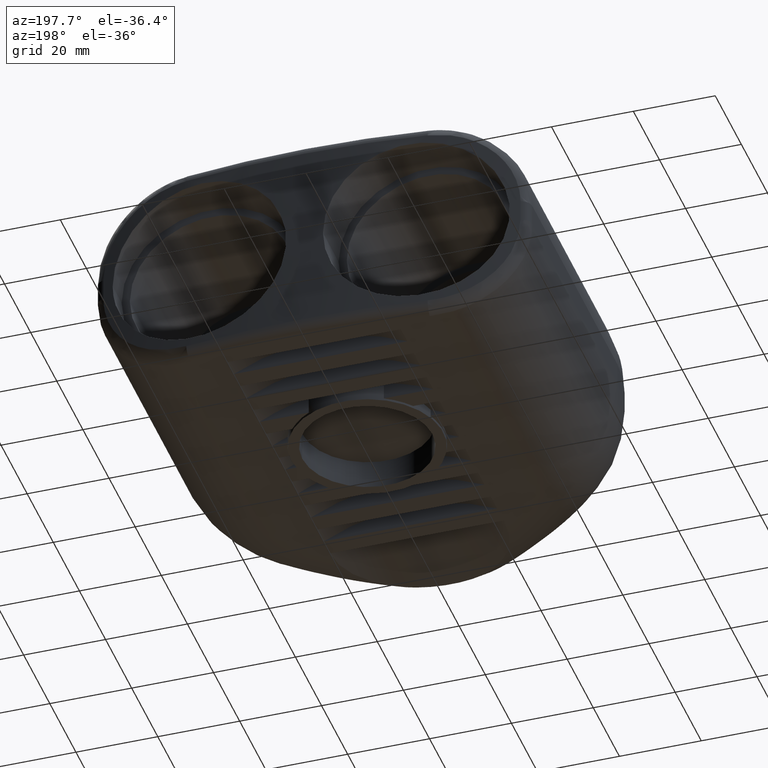
[diagram: clean part render]
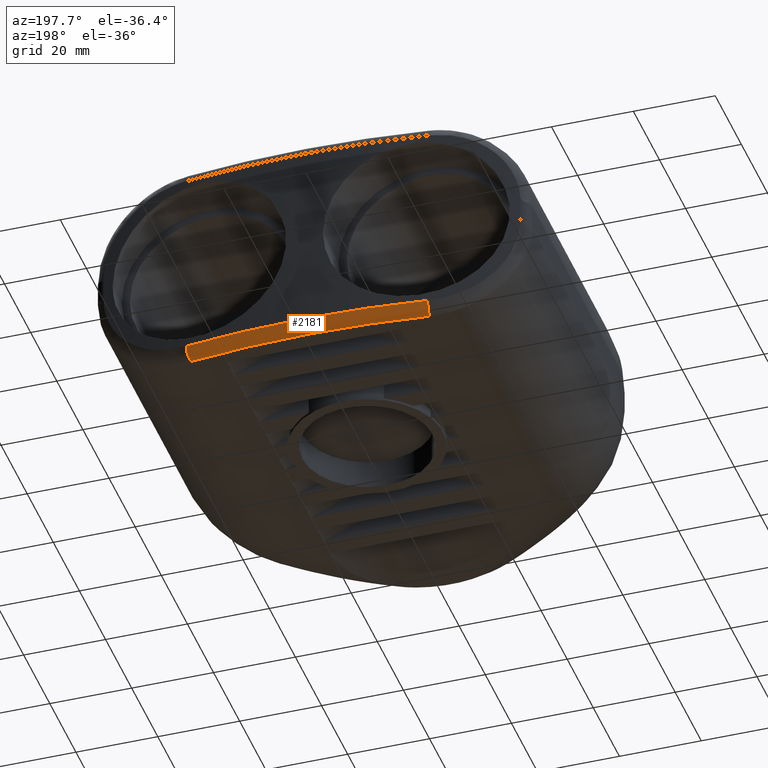
[diagram: same view with one face highlighted and labeled with its STEP entity id]
A machine part, auxiliary view. The second image highlights one B-rep face of the part: STEP entity #2181.
In plain terms, the highlighted toroidal blend (fillet) surface has major radius 228.799 mm and minor (blend) radius 2.65 mm.
Its self-contained STEP definition (entity closure, byte-faithful):
#30=TOROIDAL_SURFACE('',#2431,228.798983739837,2.65);
#560=FACE_OUTER_BOUND('',#720,.T.);
#720=EDGE_LOOP('',(#1931,#1932,#1933,#1934));
#770=CIRCLE('',#2254,228.798983739837);
#853=CIRCLE('',#2420,2.65000000000001);
#860=CIRCLE('',#2430,2.64999999999997);
#861=CIRCLE('',#2432,231.448983739837);
#916=VERTEX_POINT('',#3482);
#917=VERTEX_POINT('',#3484);
#1065=VERTEX_POINT('',#4148);
#1074=VERTEX_POINT('',#4311);
#1130=EDGE_CURVE('',#917,#916,#770,.T.);
#1354=EDGE_CURVE('',#917,#1065,#853,.T.);
#1370=EDGE_CURVE('',#1074,#916,#860,.T.);
#1373=EDGE_CURVE('',#1074,#1065,#861,.T.);
#1931=ORIENTED_EDGE('',*,*,#1354,.F.);
#1932=ORIENTED_EDGE('',*,*,#1130,.T.);
#1933=ORIENTED_EDGE('',*,*,#1370,.F.);
#1934=ORIENTED_EDGE('',*,*,#1373,.T.);
#2181=ADVANCED_FACE('',(#560),#30,.T.);
#2254=AXIS2_PLACEMENT_3D('',#3485,#2570,#2571);
#2420=AXIS2_PLACEMENT_3D('',#4149,#3022,#3023);
#2430=AXIS2_PLACEMENT_3D('',#4312,#3046,#3047);
#2431=AXIS2_PLACEMENT_3D('',#4327,#3048,#3049);
#2432=AXIS2_PLACEMENT_3D('',#4328,#3050,#3051);
#2570=DIRECTION('center_axis',(0.,0.,1.));
#2571=DIRECTION('ref_axis',(3.83746951638592E-17,1.,0.));
#3022=DIRECTION('center_axis',(0.991850853602153,-0.127404412045582,3.32430386313426E-15));
#3023=DIRECTION('ref_axis',(3.35161667811367E-15,0.,-1.));
#3046=DIRECTION('center_axis',(-0.991850853602153,-0.127404412045579,6.64860772626853E-15));
#3047=DIRECTION('ref_axis',(-0.127404412045579,0.991850853602153,0.));
#3048=DIRECTION('center_axis',(0.,0.,-1.));
#3049=DIRECTION('ref_axis',(-1.,0.,0.));
#3050=DIRECTION('center_axis',(0.,0.,-1.));
#3051=DIRECTION('ref_axis',(3.83746951638592E-17,1.,0.));
#3482=CARTESIAN_POINT('',(-29.15,93.8854835858255,-26.5));
#3484=CARTESIAN_POINT('',(29.15,93.8854835858255,-26.5));
#3485=CARTESIAN_POINT('Origin',(0.,-133.048983739837,-26.5));
#4148=CARTESIAN_POINT('',(29.4876216919208,96.5138883478712,-23.85));
#4149=CARTESIAN_POINT('Origin',(29.15,93.8854835858255,-23.85));
#4311=CARTESIAN_POINT('',(-29.4876216919207,96.5138883478712,-23.85));
#4312=CARTESIAN_POINT('Origin',(-29.1499999999999,93.8854835858255,-23.85));
#4327=CARTESIAN_POINT('Origin',(0.,-133.048983739837,-23.85));
#4328=CARTESIAN_POINT('Origin',(0.,-133.048983739837,-23.85));